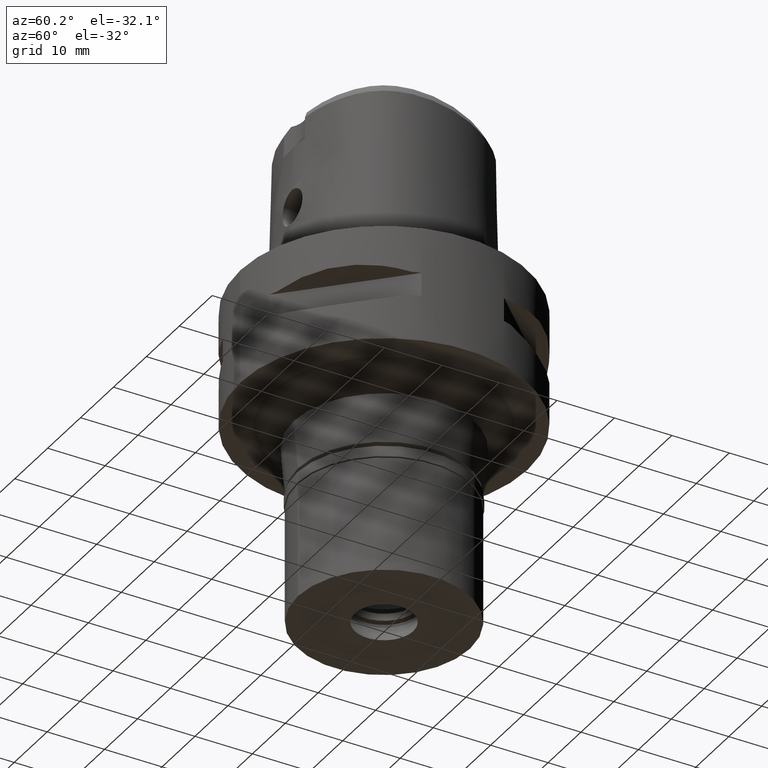
[diagram: clean part render]
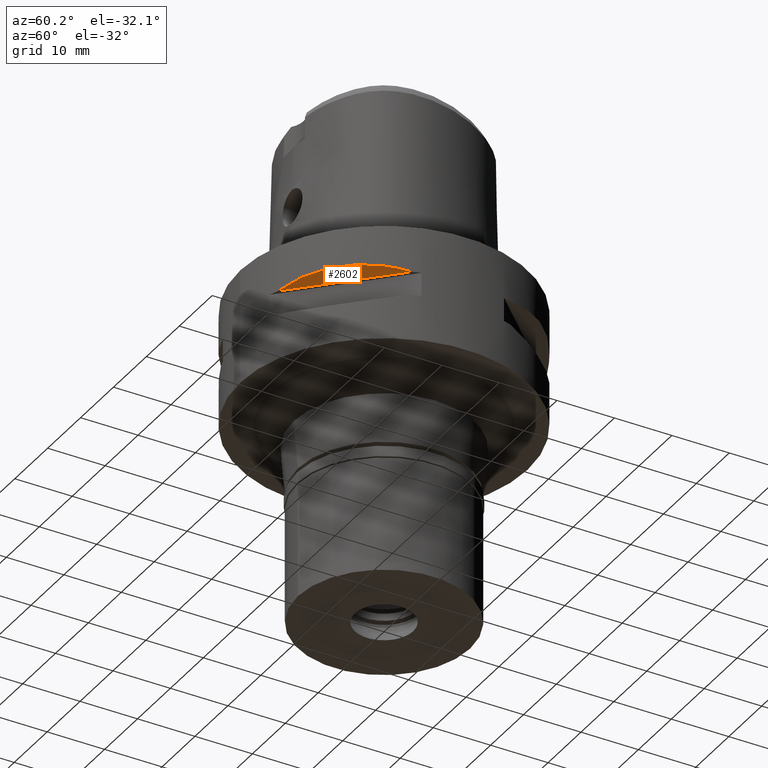
[diagram: same view with one face highlighted and labeled with its STEP entity id]
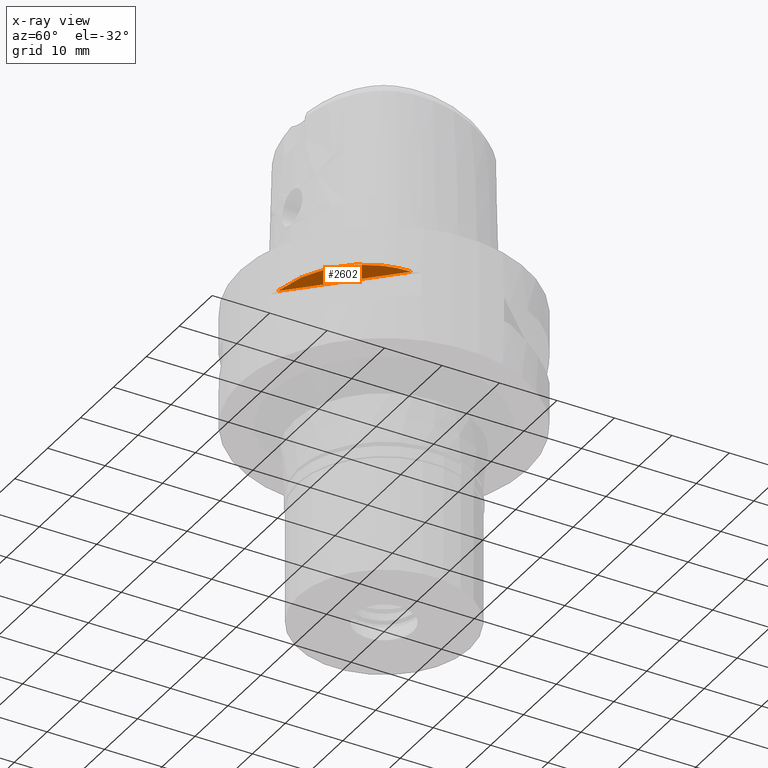
[diagram: x-ray of the same camera — body ghosted, the highlighted face saturated]
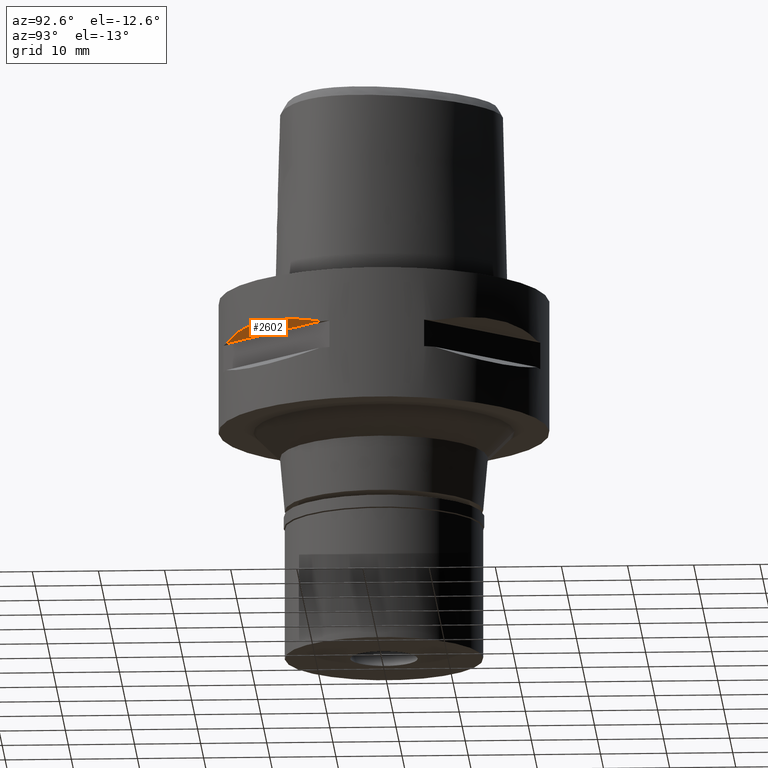
[diagram: same view with one face highlighted and labeled with its STEP entity id]
A machine part, auxiliary view. The second image highlights one B-rep face of the part: STEP entity #2602.
The next image is the same camera in x-ray: the body ghosted, the highlighted face saturated — about 0% of this face is hidden behind the body in this view.
A second angle (auxiliary view) of the same face is appended — the face is thin or edge-on in the first view.
In plain terms, the highlighted planar face has unit normal (-0.3536, 0.3536, 0.866).
Its self-contained STEP definition (entity closure, byte-faithful):
#28 = ORIENTED_EDGE ( 'NONE', *, *, #344, .F. ) ;
#59 = CARTESIAN_POINT ( 'NONE',  ( 22.82437128824116712, -10.36318218117755841, -7.507495686413089508 ) ) ;
#149 = EDGE_LOOP ( 'NONE', ( #334, #28 ) ) ;
#334 = ORIENTED_EDGE ( 'NONE', *, *, #2231, .T. ) ;
#344 = EDGE_CURVE ( 'NONE', #1583, #1720, #3762, .T. ) ;
#379 = CARTESIAN_POINT ( 'NONE',  ( 8.646484890751999330, -23.45715880140000209, -7.949999999998999201 ) ) ;
#450 = DIRECTION ( 'NONE',  ( 0.7071067811865474617, 0.7071067811865474617, 0.0000000000000000000 ) ) ;
#764 = CARTESIAN_POINT ( 'NONE',  ( 11.99631184318432275, -22.00754773654066199, -7.175632472871789069 ) ) ;
#806 = CARTESIAN_POINT ( 'NONE',  ( 8.646484890753999508, -23.45715880140000209, -7.950000000000000178 ) ) ;
#1048 = CARTESIAN_POINT ( 'NONE',  ( 10.36314631865839964, -22.82438450743505598, -7.507504930511911034 ) ) ;
#1202 = CARTESIAN_POINT ( 'NONE',  ( 8.646484890751999330, -23.45715880140000209, -7.949999999998999201 ) ) ;
#1412 = DIRECTION ( 'NONE',  ( 0.7071067811865475727, 0.7071067811865475727, 0.0000000000000000000 ) ) ;
#1583 = VERTEX_POINT ( 'NONE', #1202 ) ;
#1720 = VERTEX_POINT ( 'NONE', #2063 ) ;
#1788 = FACE_OUTER_BOUND ( 'NONE', #149, .T. ) ;
#1824 = CARTESIAN_POINT ( 'NONE',  ( 15.02693924554282034, -20.06077645869683579, -6.733132781285452673 ) ) ;
#1846 = CARTESIAN_POINT ( 'NONE',  ( 20.06074199769976829, -15.02698525043415145, -6.733118915137217719 ) ) ;
#2063 = CARTESIAN_POINT ( 'NONE',  ( 23.45715880140000209, -8.646484890751999330, -7.949999999998999201 ) ) ;
#2195 = CARTESIAN_POINT ( 'NONE',  ( 16.42437865147233111, -18.93096040785503220, -6.622505547239575741 ) ) ;
#2231 = EDGE_CURVE ( 'NONE', #1583, #1720, #2592, .T. ) ;
#2495 = PLANE ( 'NONE',  #3969 ) ;
#2592 = LINE ( 'NONE', #806, #4126 ) ;
#2602 = ADVANCED_FACE ( 'NONE', ( #1788 ), #2495, .F. ) ;
#3603 = CARTESIAN_POINT ( 'NONE',  ( 23.45715880140000209, -8.646484890751999330, -7.949999999998999201 ) ) ;
#3657 = DIRECTION ( 'NONE',  ( -0.3535533905933054277, 0.3535533905933054277, 0.8660254037844128394 ) ) ;
#3762 = B_SPLINE_CURVE_WITH_KNOTS ( 'NONE', 3,
 ( #379, #1048, #764, #1824, #2195, #4315, #1846, #3952, #59, #3603 ),
 .UNSPECIFIED., .F., .F.,
 ( 4, 2, 2, 2, 4 ),
 ( 0.0000000000000000000, 0.2500000000000000000, 0.5000000000000000000, 0.7500000000000000000, 1.000000000000000000 ),
 .UNSPECIFIED. ) ;
#3952 = CARTESIAN_POINT ( 'NONE',  ( 22.00752022560862642, -11.99636231257075991, -7.175618606723550563 ) ) ;
#3969 = AXIS2_PLACEMENT_3D ( 'NONE', #4657, #3657, #1412 ) ;
#4126 = VECTOR ( 'NONE', #450, 1000.000000000000114 ) ;
#4315 = CARTESIAN_POINT ( 'NONE',  ( 18.93096040785499667, -16.42437865147237730, -6.622496303240422044 ) ) ;
#4657 = CARTESIAN_POINT ( 'NONE',  ( 29.34493141923999815, -8.131727983644998048, -5.756475521456000166 ) ) ;